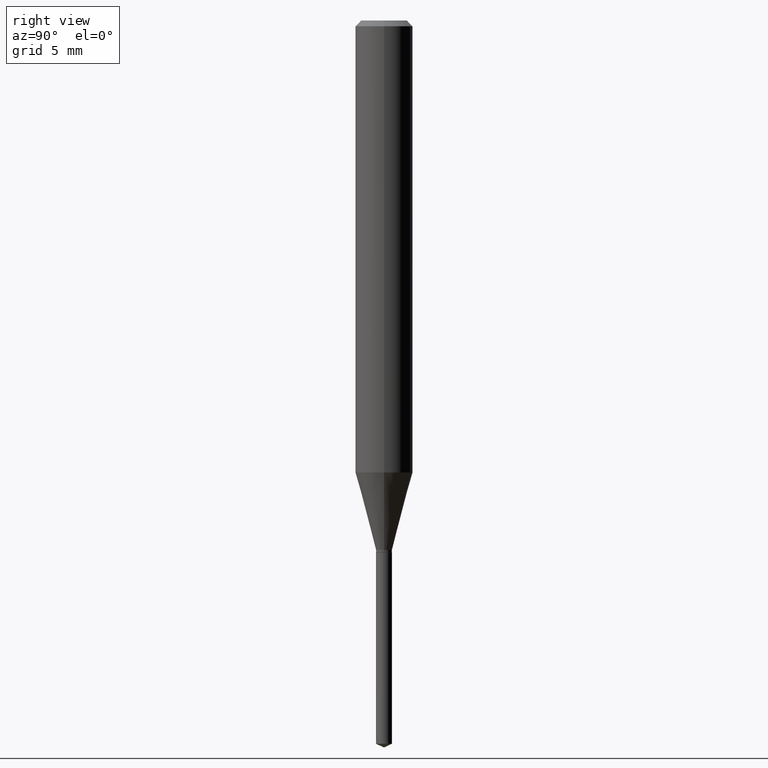
[diagram: clean part render]
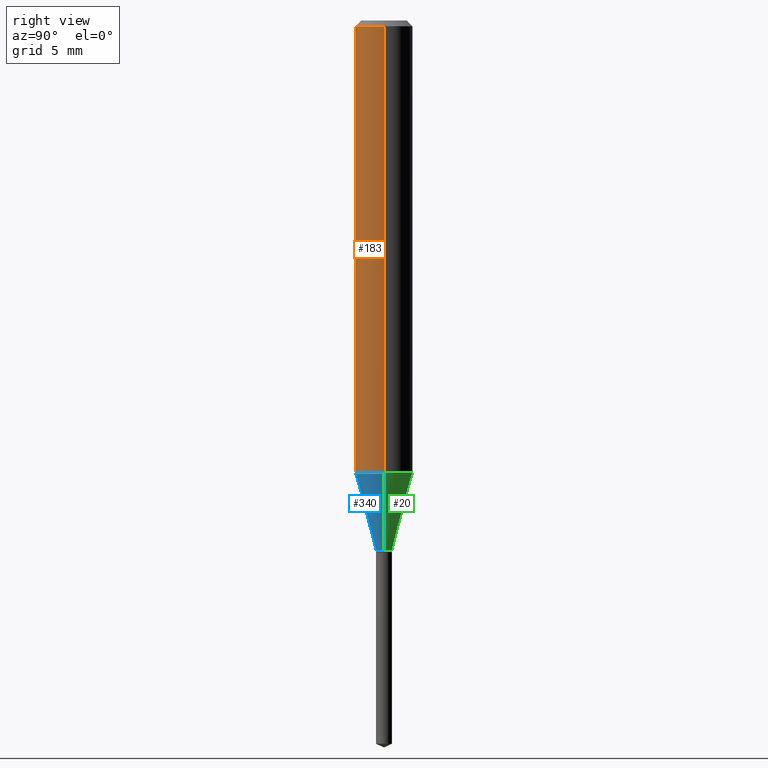
[diagram: same view with three faces highlighted in distinct colors, each labeled with its STEP entity id]
A machine part, right view with three faces highlighted in distinct colors.
Their STEP definitions:

[orange] entity #183 — the highlighted cylindrical surface (edge-blend (fillet) strip) has radius 1.4999 mm, axis along (-0, 0, 1).
#22 = CARTESIAN_POINT ( 'NONE',  ( -0.05904999999999999832, -1.225002009473624692E-15, -0.01181000000000006871 ) ) ;
#24 = FACE_OUTER_BOUND ( 'NONE', #177, .T. ) ;
#43 = DIRECTION ( 'NONE',  ( 1.000000000000000000, -6.982962677686266711E-15, 0.000000000000000000 ) ) ;
#61 = CYLINDRICAL_SURFACE ( 'NONE', #406, 0.05905000000000005383 ) ;
#84 = AXIS2_PLACEMENT_3D ( 'NONE', #414, #266, #43 ) ;
#93 = DIRECTION ( 'NONE',  ( 1.000000000000000000, -6.982962677686266711E-15, 4.876176775795935793E-29 ) ) ;
#113 = EDGE_CURVE ( 'NONE', #324, #289, #412, .T. ) ;
#152 = ORIENTED_EDGE ( 'NONE', *, *, #113, .T. ) ;
#165 = ORIENTED_EDGE ( 'NONE', *, *, #258, .T. ) ;
#177 = EDGE_LOOP ( 'NONE', ( #226, #165, #152, #365 ) ) ;
#183 = ADVANCED_FACE ( 'NONE', ( #24 ), #61, .T. ) ;
#199 = AXIS2_PLACEMENT_3D ( 'NONE', #293, #361, #441 ) ;
#203 = VERTEX_POINT ( 'NONE', #22 ) ;
#204 = DIRECTION ( 'NONE',  ( -2.445468806185136597E-29, 3.491481338843145583E-15, 1.000000000000000000 ) ) ;
#216 = CARTESIAN_POINT ( 'NONE',  ( 0.000000000000000000, 0.000000000000000000, 0.000000000000000000 ) ) ;
#222 = CARTESIAN_POINT ( 'NONE',  ( 0.05905000000000010935, -3.660264541385565561E-15, -0.9302414305168089648 ) ) ;
#226 = ORIENTED_EDGE ( 'NONE', *, *, #321, .F. ) ;
#258 = EDGE_CURVE ( 'NONE', #472, #324, #360, .T. ) ;
#261 = DIRECTION ( 'NONE',  ( -2.445468806185136877E-29, 3.491481338843145188E-15, 1.000000000000000000 ) ) ;
#266 = DIRECTION ( 'NONE',  ( -2.445468806185136597E-29, 3.491481338843145583E-15, 1.000000000000000000 ) ) ;
#289 = VERTEX_POINT ( 'NONE', #291 ) ;
#291 = CARTESIAN_POINT ( 'NONE',  ( 0.05904999999999999832, -4.535783407291118600E-16, -0.01181000000000006871 ) ) ;
#293 = CARTESIAN_POINT ( 'NONE',  ( 2.274876400549894550E-29, -3.247920595268191429E-15, -0.9302414305168089648 ) ) ;
#317 = VECTOR ( 'NONE', #483, 39.37007874015748143 ) ;
#321 = EDGE_CURVE ( 'NONE', #472, #203, #382, .T. ) ;
#324 = VERTEX_POINT ( 'NONE', #222 ) ;
#344 = CARTESIAN_POINT ( 'NONE',  ( -0.05905000000000005383, 4.195754854663395423E-16, -2.904631170795524694E-30 ) ) ;
#360 = CIRCLE ( 'NONE', #199, 0.05905000000000010935 ) ;
#361 = DIRECTION ( 'NONE',  ( -2.445468806185136597E-29, 3.491481338843145583E-15, 1.000000000000000000 ) ) ;
#365 = ORIENTED_EDGE ( 'NONE', *, *, #417, .F. ) ;
#376 = CARTESIAN_POINT ( 'NONE',  ( 0.05905000000000005383, -4.123439461173744271E-16, 2.879382386107502672E-30 ) ) ;
#382 = LINE ( 'NONE', #344, #384 ) ;
#384 = VECTOR ( 'NONE', #261, 39.37007874015748143 ) ;
#386 = CIRCLE ( 'NONE', #84, 0.05904999999999999832 ) ;
#406 = AXIS2_PLACEMENT_3D ( 'NONE', #216, #204, #93 ) ;
#412 = LINE ( 'NONE', #376, #317 ) ;
#414 = CARTESIAN_POINT ( 'NONE',  ( 2.888098660104663328E-31, -4.123439461173779030E-17, -0.01181000000000006871 ) ) ;
#417 = EDGE_CURVE ( 'NONE', #203, #289, #386, .T. ) ;
#432 = CARTESIAN_POINT ( 'NONE',  ( -0.05905000000000010935, -2.828345109801851148E-15, -0.9302414305168089648 ) ) ;
#441 = DIRECTION ( 'NONE',  ( 1.000000000000000000, -6.982962677686267499E-15, 0.000000000000000000 ) ) ;
#472 = VERTEX_POINT ( 'NONE', #432 ) ;
#483 = DIRECTION ( 'NONE',  ( -2.445468806185136877E-29, 3.491481338843145188E-15, 1.000000000000000000 ) ) ;

[blue] entity #340 — the highlighted conical surface has half-angle 15 deg.
#6 = DIRECTION ( 'NONE',  ( -2.445468806185136597E-29, 3.491481338843145583E-15, 1.000000000000000000 ) ) ;
#30 = EDGE_CURVE ( 'NONE', #424, #67, #45, .T. ) ;
#32 = LINE ( 'NONE', #182, #464 ) ;
#42 = CARTESIAN_POINT ( 'NONE',  ( -0.01634999999999999995, -3.695825588452169658E-15, -1.089600000000000124 ) ) ;
#45 = CIRCLE ( 'NONE', #137, 0.01634999999999999995 ) ;
#47 = FACE_OUTER_BOUND ( 'NONE', #172, .T. ) ;
#58 = EDGE_CURVE ( 'NONE', #67, #324, #32, .T. ) ;
#67 = VERTEX_POINT ( 'NONE', #294 ) ;
#136 = EDGE_CURVE ( 'NONE', #424, #472, #430, .T. ) ;
#137 = AXIS2_PLACEMENT_3D ( 'NONE', #374, #439, #335 ) ;
#138 = ORIENTED_EDGE ( 'NONE', *, *, #58, .T. ) ;
#150 = DIRECTION ( 'NONE',  ( 0.2588190451025213501, 1.565188264969621968E-15, 0.9659258262890682012 ) ) ;
#154 = VECTOR ( 'NONE', #397, 39.37007874015747433 ) ;
#159 = DIRECTION ( 'NONE',  ( 1.000000000000000000, -6.982962677686270655E-15, 0.000000000000000000 ) ) ;
#172 = EDGE_LOOP ( 'NONE', ( #429, #242, #138, #238 ) ) ;
#182 = CARTESIAN_POINT ( 'NONE',  ( 0.01634999999999999995, -3.918489506583662316E-15, -1.089600000000000124 ) ) ;
#186 = CONICAL_SURFACE ( 'NONE', #467, 0.01634999999999999995, 0.2617993877991500740 ) ;
#199 = AXIS2_PLACEMENT_3D ( 'NONE', #293, #361, #441 ) ;
#219 = CARTESIAN_POINT ( 'NONE',  ( -0.01634999999999999995, -3.688144329506715042E-15, -1.089600000000000124 ) ) ;
#222 = CARTESIAN_POINT ( 'NONE',  ( 0.05905000000000010935, -3.660264541385565561E-15, -0.9302414305168089648 ) ) ;
#238 = ORIENTED_EDGE ( 'NONE', *, *, #258, .F. ) ;
#242 = ORIENTED_EDGE ( 'NONE', *, *, #30, .T. ) ;
#258 = EDGE_CURVE ( 'NONE', #472, #324, #360, .T. ) ;
#293 = CARTESIAN_POINT ( 'NONE',  ( 2.274876400549894550E-29, -3.247920595268191429E-15, -0.9302414305168089648 ) ) ;
#294 = CARTESIAN_POINT ( 'NONE',  ( 0.01634999999999999995, -3.918489506583662316E-15, -1.089600000000000124 ) ) ;
#324 = VERTEX_POINT ( 'NONE', #222 ) ;
#335 = DIRECTION ( 'NONE',  ( 1.000000000000000000, -6.982962677686270655E-15, 0.000000000000000000 ) ) ;
#340 = ADVANCED_FACE ( 'NONE', ( #47 ), #186, .T. ) ;
#349 = CARTESIAN_POINT ( 'NONE',  ( 2.664582811219324806E-29, -3.804318066803491249E-15, -1.089600000000000124 ) ) ;
#360 = CIRCLE ( 'NONE', #199, 0.05905000000000010935 ) ;
#361 = DIRECTION ( 'NONE',  ( -2.445468806185136597E-29, 3.491481338843145583E-15, 1.000000000000000000 ) ) ;
#374 = CARTESIAN_POINT ( 'NONE',  ( 2.664582811219324806E-29, -3.804318066803491249E-15, -1.089600000000000124 ) ) ;
#397 = DIRECTION ( 'NONE',  ( -0.2588190451025213501, 5.211531920934551042E-15, 0.9659258262890682012 ) ) ;
#424 = VERTEX_POINT ( 'NONE', #42 ) ;
#429 = ORIENTED_EDGE ( 'NONE', *, *, #136, .F. ) ;
#430 = LINE ( 'NONE', #219, #154 ) ;
#432 = CARTESIAN_POINT ( 'NONE',  ( -0.05905000000000010935, -2.828345109801851148E-15, -0.9302414305168089648 ) ) ;
#439 = DIRECTION ( 'NONE',  ( -2.445468806185136597E-29, 3.491481338843145583E-15, 1.000000000000000000 ) ) ;
#441 = DIRECTION ( 'NONE',  ( 1.000000000000000000, -6.982962677686267499E-15, 0.000000000000000000 ) ) ;
#464 = VECTOR ( 'NONE', #150, 39.37007874015747433 ) ;
#467 = AXIS2_PLACEMENT_3D ( 'NONE', #349, #6, #159 ) ;
#472 = VERTEX_POINT ( 'NONE', #432 ) ;

[green] entity #20 — the highlighted conical surface has half-angle 15 deg.
#3 = DIRECTION ( 'NONE',  ( 1.000000000000000000, -6.982962677686267499E-15, 0.000000000000000000 ) ) ;
#20 = ADVANCED_FACE ( 'NONE', ( #408 ), #433, .T. ) ;
#32 = LINE ( 'NONE', #182, #464 ) ;
#42 = CARTESIAN_POINT ( 'NONE',  ( -0.01634999999999999995, -3.695825588452169658E-15, -1.089600000000000124 ) ) ;
#58 = EDGE_CURVE ( 'NONE', #67, #324, #32, .T. ) ;
#67 = VERTEX_POINT ( 'NONE', #294 ) ;
#75 = DIRECTION ( 'NONE',  ( 1.000000000000000000, -6.982962677686270655E-15, 0.000000000000000000 ) ) ;
#121 = DIRECTION ( 'NONE',  ( -2.445468806185136597E-29, 3.491481338843145583E-15, 1.000000000000000000 ) ) ;
#136 = EDGE_CURVE ( 'NONE', #424, #472, #430, .T. ) ;
#139 = CIRCLE ( 'NONE', #381, 0.01634999999999999995 ) ;
#150 = DIRECTION ( 'NONE',  ( 0.2588190451025213501, 1.565188264969621968E-15, 0.9659258262890682012 ) ) ;
#154 = VECTOR ( 'NONE', #397, 39.37007874015747433 ) ;
#182 = CARTESIAN_POINT ( 'NONE',  ( 0.01634999999999999995, -3.918489506583662316E-15, -1.089600000000000124 ) ) ;
#185 = ORIENTED_EDGE ( 'NONE', *, *, #58, .F. ) ;
#187 = CARTESIAN_POINT ( 'NONE',  ( 2.664582811219324806E-29, -3.804318066803491249E-15, -1.089600000000000124 ) ) ;
#213 = ORIENTED_EDGE ( 'NONE', *, *, #409, .F. ) ;
#219 = CARTESIAN_POINT ( 'NONE',  ( -0.01634999999999999995, -3.688144329506715042E-15, -1.089600000000000124 ) ) ;
#222 = CARTESIAN_POINT ( 'NONE',  ( 0.05905000000000010935, -3.660264541385565561E-15, -0.9302414305168089648 ) ) ;
#223 = DIRECTION ( 'NONE',  ( -2.445468806185136597E-29, 3.491481338843145583E-15, 1.000000000000000000 ) ) ;
#245 = ORIENTED_EDGE ( 'NONE', *, *, #488, .T. ) ;
#282 = DIRECTION ( 'NONE',  ( 1.000000000000000000, -6.982962677686270655E-15, 0.000000000000000000 ) ) ;
#290 = EDGE_LOOP ( 'NONE', ( #245, #474, #213, #185 ) ) ;
#294 = CARTESIAN_POINT ( 'NONE',  ( 0.01634999999999999995, -3.918489506583662316E-15, -1.089600000000000124 ) ) ;
#316 = DIRECTION ( 'NONE',  ( -2.445468806185136597E-29, 3.491481338843145583E-15, 1.000000000000000000 ) ) ;
#320 = CARTESIAN_POINT ( 'NONE',  ( 2.664582811219324806E-29, -3.804318066803491249E-15, -1.089600000000000124 ) ) ;
#324 = VERTEX_POINT ( 'NONE', #222 ) ;
#381 = AXIS2_PLACEMENT_3D ( 'NONE', #320, #316, #282 ) ;
#397 = DIRECTION ( 'NONE',  ( -0.2588190451025213501, 5.211531920934551042E-15, 0.9659258262890682012 ) ) ;
#408 = FACE_OUTER_BOUND ( 'NONE', #290, .T. ) ;
#409 = EDGE_CURVE ( 'NONE', #324, #472, #445, .T. ) ;
#421 = AXIS2_PLACEMENT_3D ( 'NONE', #454, #121, #3 ) ;
#424 = VERTEX_POINT ( 'NONE', #42 ) ;
#430 = LINE ( 'NONE', #219, #154 ) ;
#432 = CARTESIAN_POINT ( 'NONE',  ( -0.05905000000000010935, -2.828345109801851148E-15, -0.9302414305168089648 ) ) ;
#433 = CONICAL_SURFACE ( 'NONE', #459, 0.01634999999999999995, 0.2617993877991500740 ) ;
#445 = CIRCLE ( 'NONE', #421, 0.05905000000000010935 ) ;
#454 = CARTESIAN_POINT ( 'NONE',  ( 2.274876400549894550E-29, -3.247920595268191429E-15, -0.9302414305168089648 ) ) ;
#459 = AXIS2_PLACEMENT_3D ( 'NONE', #187, #223, #75 ) ;
#464 = VECTOR ( 'NONE', #150, 39.37007874015747433 ) ;
#472 = VERTEX_POINT ( 'NONE', #432 ) ;
#474 = ORIENTED_EDGE ( 'NONE', *, *, #136, .T. ) ;
#488 = EDGE_CURVE ( 'NONE', #67, #424, #139, .T. ) ;